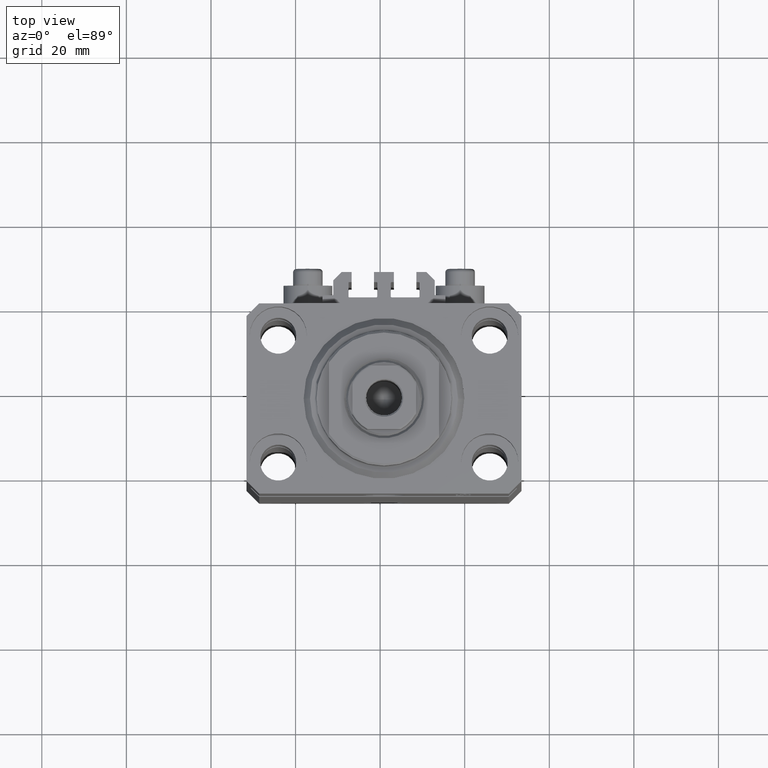
[diagram: clean part render]
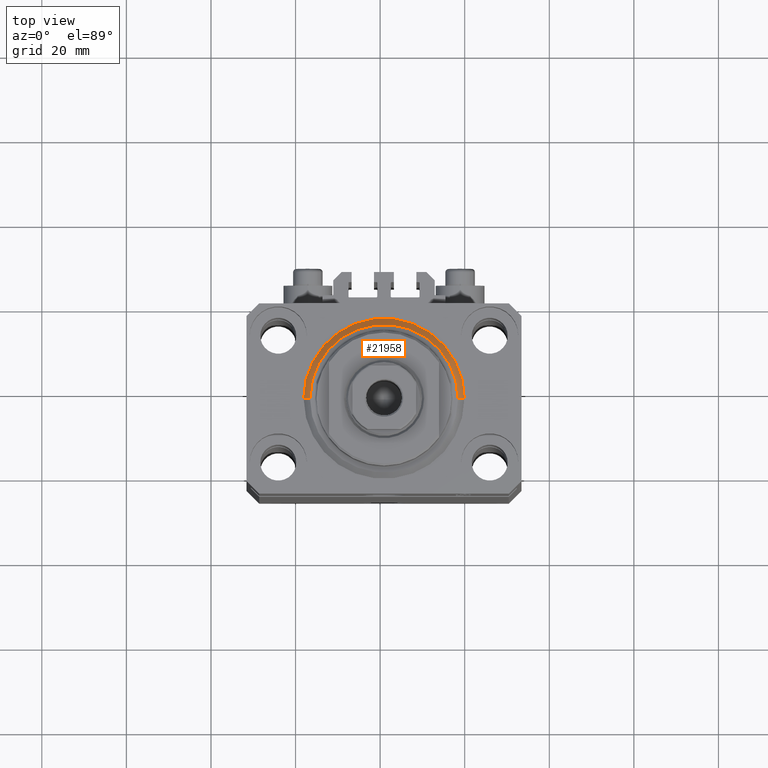
[diagram: same view with one face highlighted and labeled with its STEP entity id]
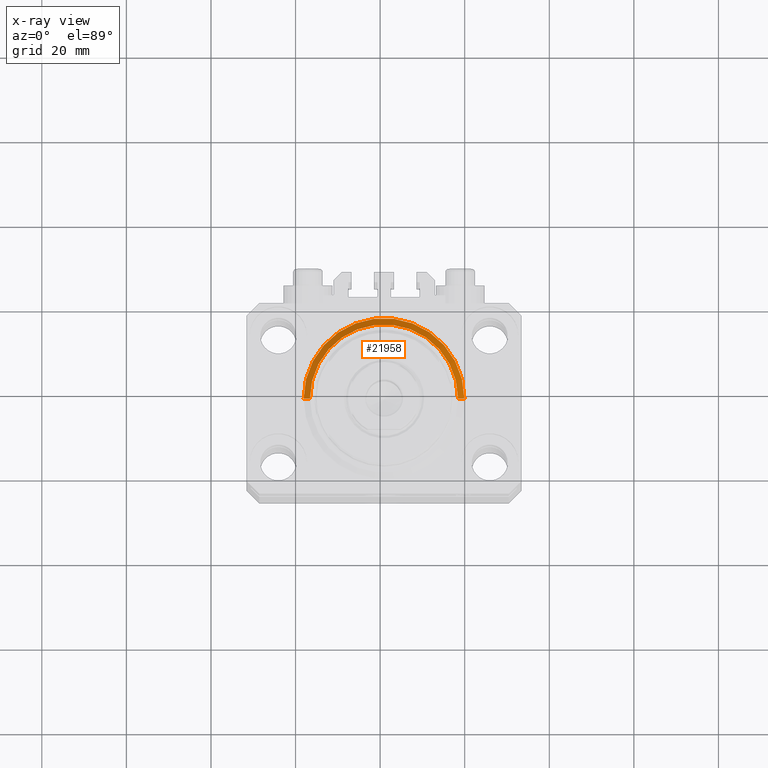
[diagram: x-ray of the same camera — body ghosted, the highlighted face saturated]
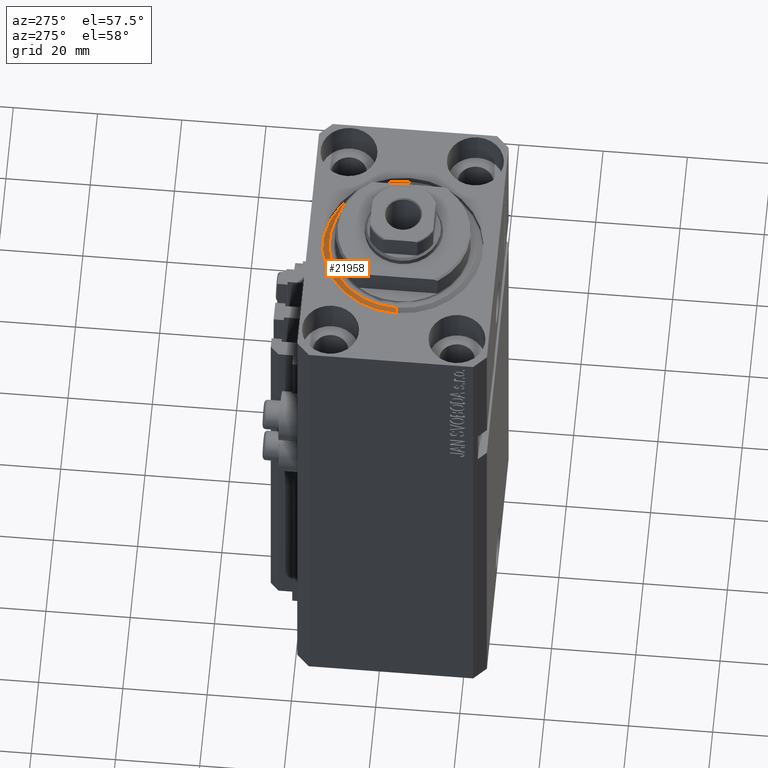
[diagram: same view with one face highlighted and labeled with its STEP entity id]
A machine part, top view. The second image highlights one B-rep face of the part: STEP entity #21958.
The next image is the same camera in x-ray: the body ghosted, the highlighted face saturated — about 0% of this face is hidden behind the body in this view.
A second angle (auxiliary view) of the same face is appended — the face is thin or edge-on in the first view.
In plain terms, the highlighted conical surface has half-angle 45 deg.
Its self-contained STEP definition (entity closure, byte-faithful):
#747 = AXIS2_PLACEMENT_3D ( 'NONE', #24353, #38919, #10757 ) ;
#1694 = VECTOR ( 'NONE', #2640, 1000.000000000000000 ) ;
#1747 = DIRECTION ( 'NONE',  ( 1.000000000000000000, 0.000000000000000000, 0.000000000000000000 ) ) ;
#2534 = FACE_OUTER_BOUND ( 'NONE', #24656, .T. ) ;
#2640 = DIRECTION ( 'NONE',  ( -0.7071067811865483499, 8.659560562354942719E-17, 0.7071067811865467956 ) ) ;
#4169 = VECTOR ( 'NONE', #22252, 1000.000000000000000 ) ;
#4445 = AXIS2_PLACEMENT_3D ( 'NONE', #42154, #6348, #45500 ) ;
#5512 = ORIENTED_EDGE ( 'NONE', *, *, #27464, .F. ) ;
#6348 = DIRECTION ( 'NONE',  ( -0.000000000000000000, -0.000000000000000000, 1.000000000000000000 ) ) ;
#8972 = EDGE_CURVE ( 'NONE', #37729, #9130, #18681, .T. ) ;
#9130 = VERTEX_POINT ( 'NONE', #24825 ) ;
#10042 = LINE ( 'NONE', #39385, #1694 ) ;
#10757 = DIRECTION ( 'NONE',  ( 1.000000000000000000, 0.000000000000000000, 0.000000000000000000 ) ) ;
#11136 = ORIENTED_EDGE ( 'NONE', *, *, #8972, .F. ) ;
#11670 = CARTESIAN_POINT ( 'NONE',  ( -17.49999999999999645, 2.234980408443919215E-15, 0.000000000000000000 ) ) ;
#15805 = CARTESIAN_POINT ( 'NONE',  ( 19.00000000000000000, 0.000000000000000000, 1.500000000000001332 ) ) ;
#18544 = ORIENTED_EDGE ( 'NONE', *, *, #33449, .T. ) ;
#18681 = LINE ( 'NONE', #15805, #4169 ) ;
#21958 = ADVANCED_FACE ( 'NONE', ( #2534 ), #34941, .T. ) ;
#22038 = DIRECTION ( 'NONE',  ( -0.000000000000000000, -0.000000000000000000, 1.000000000000000000 ) ) ;
#22159 = CIRCLE ( 'NONE', #45015, 19.00000000000000000 ) ;
#22252 = DIRECTION ( 'NONE',  ( 0.7071067811865483499, 0.000000000000000000, 0.7071067811865467956 ) ) ;
#24193 = EDGE_CURVE ( 'NONE', #28501, #37729, #29711, .T. ) ;
#24353 = CARTESIAN_POINT ( 'NONE',  ( 0.000000000000000000, 0.000000000000000000, 0.000000000000000000 ) ) ;
#24656 = EDGE_LOOP ( 'NONE', ( #46771, #18544, #5512, #11136 ) ) ;
#24825 = CARTESIAN_POINT ( 'NONE',  ( 19.00000000000000000, 2.326828918379970970E-15, 1.500000000000001332 ) ) ;
#27464 = EDGE_CURVE ( 'NONE', #9130, #45590, #22159, .T. ) ;
#28501 = VERTEX_POINT ( 'NONE', #11670 ) ;
#29711 = CIRCLE ( 'NONE', #747, 17.49999999999999645 ) ;
#32782 = CARTESIAN_POINT ( 'NONE',  ( 0.000000000000000000, 0.000000000000000000, 1.500000000000001332 ) ) ;
#33449 = EDGE_CURVE ( 'NONE', #28501, #45590, #10042, .T. ) ;
#34941 = CONICAL_SURFACE ( 'NONE', #4445, 19.00000000000000000, 0.7853981633974492782 ) ;
#37729 = VERTEX_POINT ( 'NONE', #37791 ) ;
#37791 = CARTESIAN_POINT ( 'NONE',  ( 17.49999999999999645, 0.000000000000000000, 0.000000000000000000 ) ) ;
#38919 = DIRECTION ( 'NONE',  ( -0.000000000000000000, -0.000000000000000000, -1.000000000000000000 ) ) ;
#39385 = CARTESIAN_POINT ( 'NONE',  ( -19.00000000000000000, 2.326828918379970970E-15, 1.500000000000001332 ) ) ;
#42154 = CARTESIAN_POINT ( 'NONE',  ( 0.000000000000000000, 0.000000000000000000, 1.500000000000001332 ) ) ;
#44739 = CARTESIAN_POINT ( 'NONE',  ( -19.00000000000000000, 0.000000000000000000, 1.500000000000001332 ) ) ;
#45015 = AXIS2_PLACEMENT_3D ( 'NONE', #32782, #22038, #1747 ) ;
#45500 = DIRECTION ( 'NONE',  ( 1.000000000000000000, 0.000000000000000000, 0.000000000000000000 ) ) ;
#45590 = VERTEX_POINT ( 'NONE', #44739 ) ;
#46771 = ORIENTED_EDGE ( 'NONE', *, *, #24193, .F. ) ;